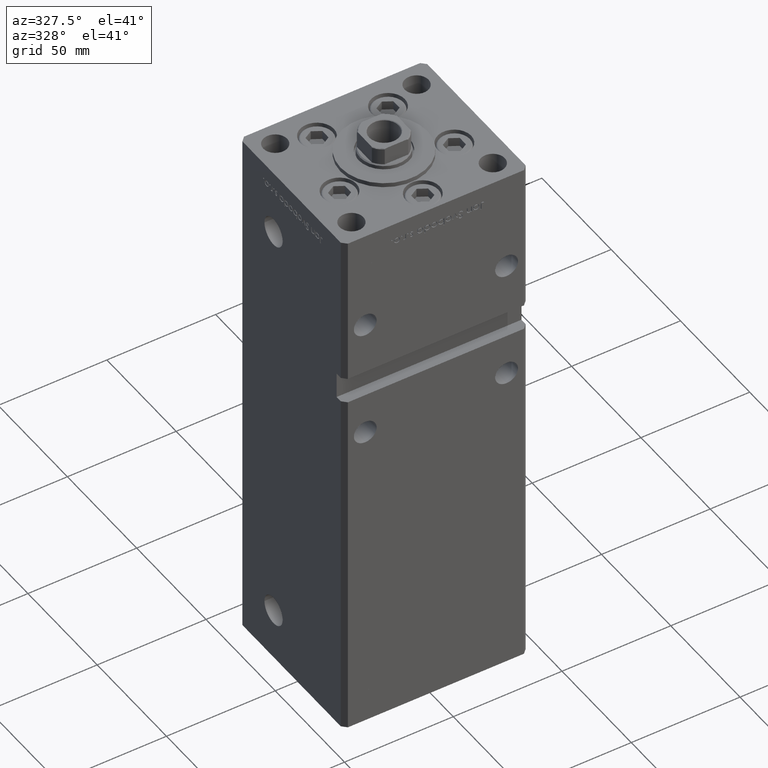
[diagram: clean part render]
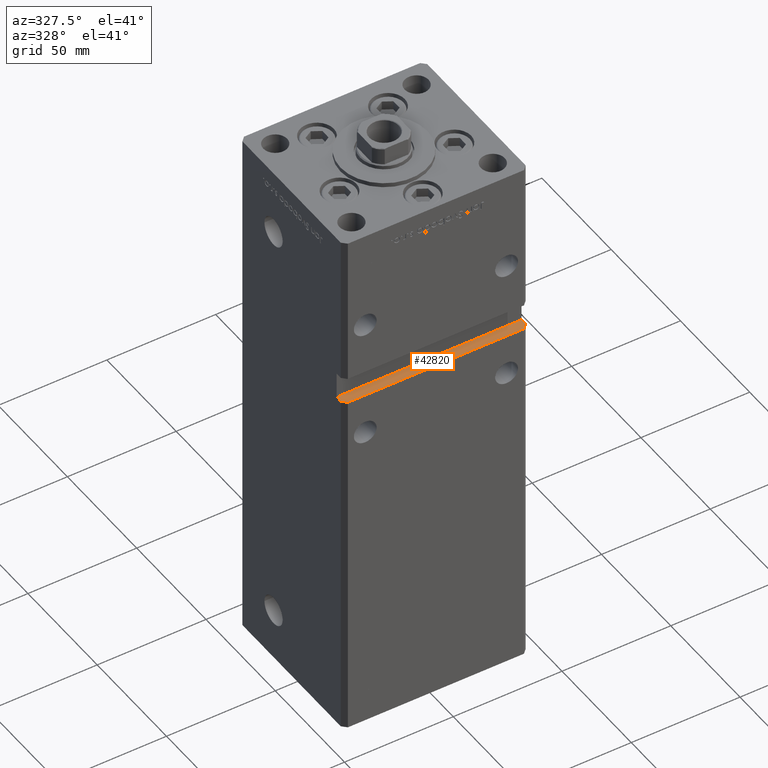
[diagram: same view with one face highlighted and labeled with its STEP entity id]
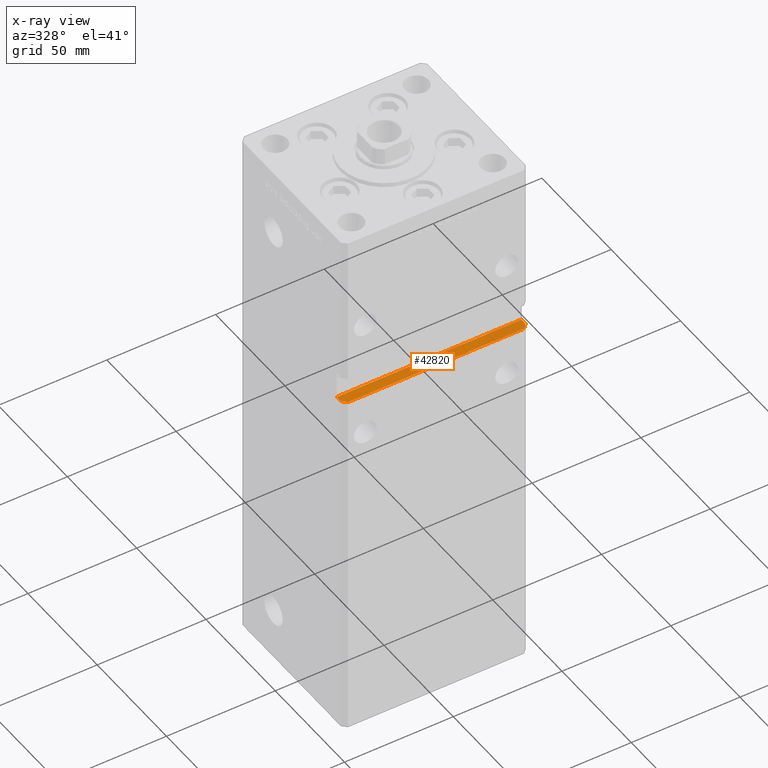
[diagram: x-ray of the same camera — body ghosted, the highlighted face saturated]
A machine part, auxiliary view. The second image highlights one B-rep face of the part: STEP entity #42820.
The next image is the same camera in x-ray: the body ghosted, the highlighted face saturated — about 0% of this face is hidden behind the body in this view.
In plain terms, the highlighted planar face has unit normal (0, 0, -1).
Its self-contained STEP definition (entity closure, byte-faithful):
#154 = DIRECTION ( 'NONE',  ( 1.000000000000000000, 0.000000000000000000, 0.000000000000000000 ) ) ;
#351 = VECTOR ( 'NONE', #45606, 1000.000000000000000 ) ;
#2828 = DIRECTION ( 'NONE',  ( -0.000000000000000000, -1.000000000000000000, -0.000000000000000000 ) ) ;
#4701 = CARTESIAN_POINT ( 'NONE',  ( 40.49999999999998579, -37.50000000000000711, 152.0000000000000284 ) ) ;
#5968 = VERTEX_POINT ( 'NONE', #36572 ) ;
#9239 = VECTOR ( 'NONE', #35339, 1000.000000000000114 ) ;
#10729 = CARTESIAN_POINT ( 'NONE',  ( -42.49999999999998579, -32.50000000000000711, 152.0000000000000284 ) ) ;
#11117 = ORIENTED_EDGE ( 'NONE', *, *, #49507, .T. ) ;
#11410 = CARTESIAN_POINT ( 'NONE',  ( -42.49999999999998579, -32.50000000000000711, 152.0000000000000284 ) ) ;
#12061 = EDGE_CURVE ( 'NONE', #5968, #26174, #52006, .T. ) ;
#13089 = LINE ( 'NONE', #21966, #24406 ) ;
#13373 = CARTESIAN_POINT ( 'NONE',  ( -42.49999999999998579, -35.49999999999996447, 152.0000000000000284 ) ) ;
#13659 = VERTEX_POINT ( 'NONE', #13373 ) ;
#14510 = CARTESIAN_POINT ( 'NONE',  ( 42.49999999999998579, -35.50000000000000711, 152.0000000000000284 ) ) ;
#15278 = LINE ( 'NONE', #27113, #27716 ) ;
#16409 = ORIENTED_EDGE ( 'NONE', *, *, #35950, .T. ) ;
#18448 = ORIENTED_EDGE ( 'NONE', *, *, #30020, .F. ) ;
#18968 = CARTESIAN_POINT ( 'NONE',  ( 42.49999999999998579, -35.50000000000000711, 152.0000000000000284 ) ) ;
#19195 = ORIENTED_EDGE ( 'NONE', *, *, #12061, .F. ) ;
#19489 = DIRECTION ( 'NONE',  ( -1.000000000000000000, 0.000000000000000000, -0.000000000000000000 ) ) ;
#21141 = VERTEX_POINT ( 'NONE', #10729 ) ;
#21966 = CARTESIAN_POINT ( 'NONE',  ( -42.49999999999998579, -32.50000000000000711, 152.0000000000000284 ) ) ;
#22539 = DIRECTION ( 'NONE',  ( -0.7071067811865474617, 0.7071067811865474617, 0.000000000000000000 ) ) ;
#24406 = VECTOR ( 'NONE', #29754, 1000.000000000000000 ) ;
#25120 = VERTEX_POINT ( 'NONE', #51906 ) ;
#26174 = VERTEX_POINT ( 'NONE', #14510 ) ;
#27113 = CARTESIAN_POINT ( 'NONE',  ( -42.49999999999998579, -35.50000000000000711, 152.0000000000000284 ) ) ;
#27716 = VECTOR ( 'NONE', #22539, 1000.000000000000114 ) ;
#29754 = DIRECTION ( 'NONE',  ( -0.000000000000000000, -1.000000000000000000, -0.000000000000000000 ) ) ;
#30020 = EDGE_CURVE ( 'NONE', #21141, #5968, #48811, .T. ) ;
#30672 = EDGE_CURVE ( 'NONE', #25120, #13659, #15278, .T. ) ;
#30782 = FACE_OUTER_BOUND ( 'NONE', #34368, .T. ) ;
#31319 = PLANE ( 'NONE',  #38189 ) ;
#31594 = ORIENTED_EDGE ( 'NONE', *, *, #34879, .T. ) ;
#32803 = VECTOR ( 'NONE', #154, 1000.000000000000000 ) ;
#34368 = EDGE_LOOP ( 'NONE', ( #31594, #11117, #19195, #18448, #16409, #40822 ) ) ;
#34879 = EDGE_CURVE ( 'NONE', #25120, #52702, #49896, .T. ) ;
#35339 = DIRECTION ( 'NONE',  ( 0.7071067811865474617, 0.7071067811865474617, 0.000000000000000000 ) ) ;
#35950 = EDGE_CURVE ( 'NONE', #21141, #13659, #13089, .T. ) ;
#36158 = VECTOR ( 'NONE', #2828, 1000.000000000000000 ) ;
#36572 = CARTESIAN_POINT ( 'NONE',  ( 42.49999999999998579, -32.50000000000000000, 152.0000000000000284 ) ) ;
#38189 = AXIS2_PLACEMENT_3D ( 'NONE', #11410, #47172, #19489 ) ;
#40822 = ORIENTED_EDGE ( 'NONE', *, *, #30672, .F. ) ;
#41517 = CARTESIAN_POINT ( 'NONE',  ( -42.49999999999998579, -32.50000000000000711, 152.0000000000000284 ) ) ;
#42092 = CARTESIAN_POINT ( 'NONE',  ( -42.49999999999998579, -37.50000000000000711, 152.0000000000000284 ) ) ;
#42820 = ADVANCED_FACE ( 'NONE', ( #30782 ), #31319, .F. ) ;
#43124 = CARTESIAN_POINT ( 'NONE',  ( 42.49999999999998579, -32.50000000000000711, 152.0000000000000284 ) ) ;
#43136 = LINE ( 'NONE', #18968, #9239 ) ;
#45606 = DIRECTION ( 'NONE',  ( 1.000000000000000000, 0.000000000000000000, 0.000000000000000000 ) ) ;
#47172 = DIRECTION ( 'NONE',  ( 0.000000000000000000, 0.000000000000000000, -1.000000000000000000 ) ) ;
#48811 = LINE ( 'NONE', #41517, #32803 ) ;
#49507 = EDGE_CURVE ( 'NONE', #52702, #26174, #43136, .T. ) ;
#49896 = LINE ( 'NONE', #42092, #351 ) ;
#51906 = CARTESIAN_POINT ( 'NONE',  ( -40.49999999999998579, -37.50000000000000711, 152.0000000000000284 ) ) ;
#52006 = LINE ( 'NONE', #43124, #36158 ) ;
#52702 = VERTEX_POINT ( 'NONE', #4701 ) ;